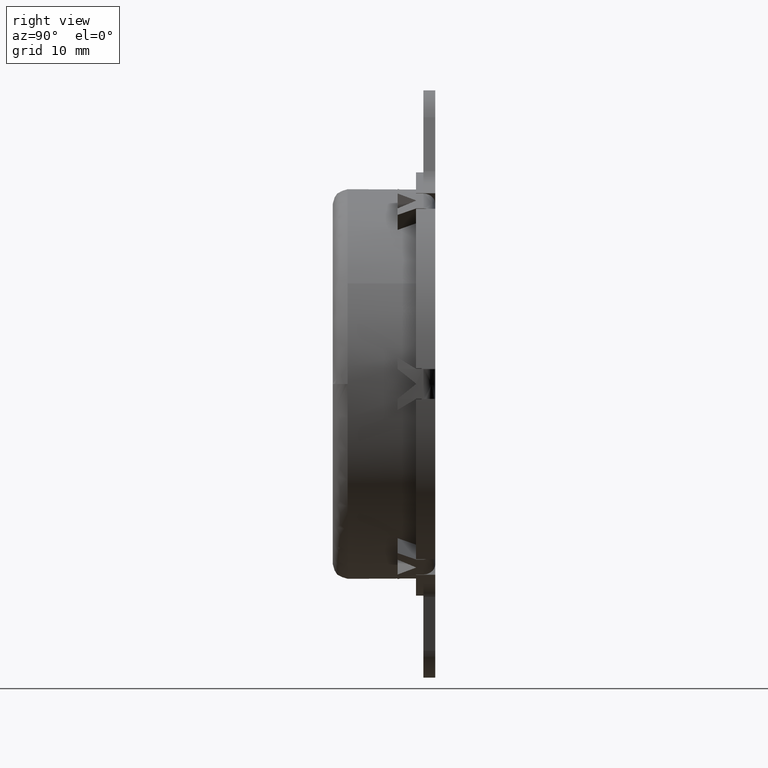
[diagram: clean part render]
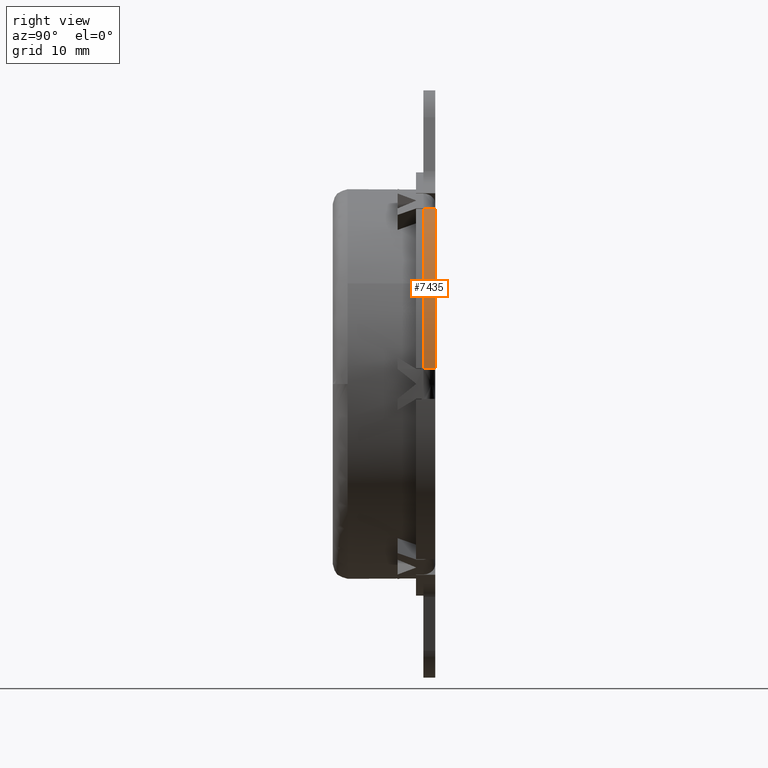
[diagram: same view with one face highlighted and labeled with its STEP entity id]
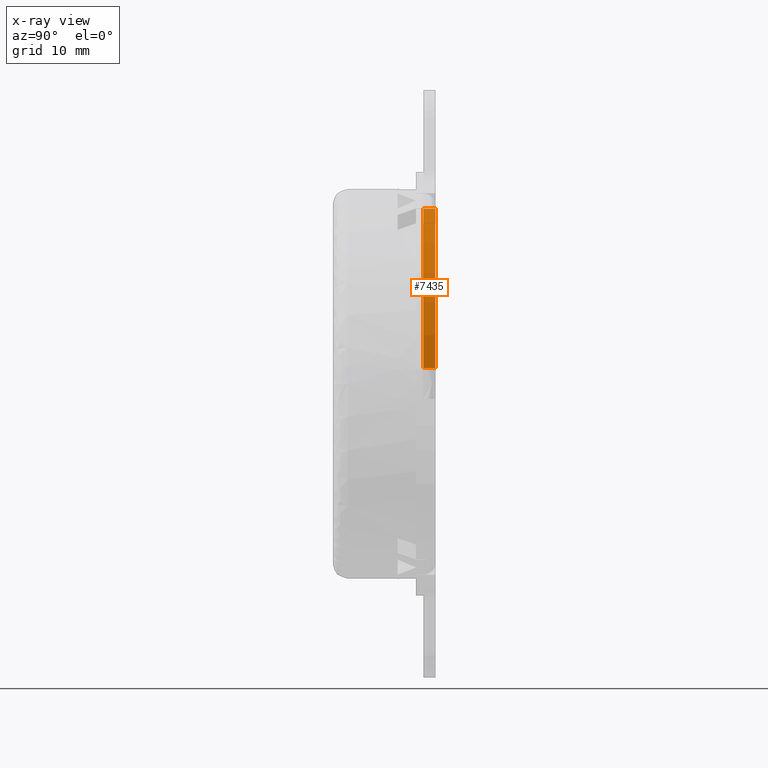
[diagram: x-ray of the same camera — body ghosted, the highlighted face saturated]
A machine part, right view. The second image highlights one B-rep face of the part: STEP entity #7435.
The next image is the same camera in x-ray: the body ghosted, the highlighted face saturated — about 0% of this face is hidden behind the body in this view.
In plain terms, the highlighted face is a freeform B-spline surface patch.
Its self-contained STEP definition (entity closure, byte-faithful):
#6673=CARTESIAN_POINT('',(16.029916486739548,0.0,23.564629796119348));
#6674=VERTEX_POINT('',#6673);
#6680=CARTESIAN_POINT('',(28.422526277584851,0.0,2.099999999999800));
#6681=VERTEX_POINT('',#6680);
#6682=CARTESIAN_POINT('',(28.422526277584840,0.0,2.099999999999783));
#6683=CARTESIAN_POINT('',(27.408505005214579,0.0,15.824307742845857));
#6684=CARTESIAN_POINT('',(16.029916486739548,0.0,23.564629796119348));
#6692=(BOUNDED_CURVE()B_SPLINE_CURVE(2,(#6682,#6683,#6684),.UNSPECIFIED.,.F.,.U.)CURVE()GEOMETRIC_REPRESENTATION_ITEM()QUASI_UNIFORM_CURVE()RATIONAL_B_SPLINE_CURVE((1.0,0.900513326179618,1.0))REPRESENTATION_ITEM(''));
#6693=EDGE_CURVE('',#6681,#6674,#6692,.T.);
#7359=CARTESIAN_POINT('',(16.029916486739548,-1.600010000000095,23.564629796119348));
#7360=VERTEX_POINT('',#7359);
#7366=CARTESIAN_POINT('',(16.029916486739548,-1.600010000000095,23.564629796119348));
#7367=CARTESIAN_POINT('',(16.029916486739548,0.0,23.564629796119348));
#7368=QUASI_UNIFORM_CURVE('',1,(#7366,#7367),.UNSPECIFIED.,.F.,.U.);
#7369=EDGE_CURVE('',#7360,#6674,#7368,.T.);
#7380=CARTESIAN_POINT('',(28.422526277584851,-1.600010000000095,2.099999999999790));
#7381=VERTEX_POINT('',#7380);
#7382=CARTESIAN_POINT('',(28.422526277584851,-1.600010000000095,2.099999999999790));
#7383=CARTESIAN_POINT('',(28.422526277584851,0.0,2.099999999999800));
#7384=QUASI_UNIFORM_CURVE('',1,(#7382,#7383),.UNSPECIFIED.,.F.,.U.);
#7385=EDGE_CURVE('',#7381,#6681,#7384,.T.);
#7403=CARTESIAN_POINT('',(28.439769759422258,-1.640010250000098,1.851889853919763));
#7404=CARTESIAN_POINT('',(28.439769759422258,0.041000256250002,1.851889853919763));
#7405=CARTESIAN_POINT('',(27.485213950420512,-1.640010250000098,16.511156641881197));
#7406=CARTESIAN_POINT('',(27.485213950420512,0.041000256250002,16.511156641881197));
#7407=CARTESIAN_POINT('',(14.991484328262926,-1.640010250000098,24.238510631543495));
#7408=CARTESIAN_POINT('',(14.991484328262926,0.041000256250002,24.238510631543495));
#7416=(BOUNDED_SURFACE()B_SPLINE_SURFACE(1,2,((#7403,#7405,#7407),(#7404,#7406,#7408)),.UNSPECIFIED.,.F.,.F.,.U.)B_SPLINE_SURFACE_WITH_KNOTS((2,2),(3,3),(0.0,1.0),(0.0,27.651980028960779),.UNSPECIFIED.)GEOMETRIC_REPRESENTATION_ITEM()RATIONAL_B_SPLINE_SURFACE(((1.0,0.887997178134883,0.998044530788465),(1.0,0.887997178134883,0.998044530788465)))REPRESENTATION_ITEM('')SURFACE());
#7417=CARTESIAN_POINT('',(28.422526277584840,-1.600010000000095,2.099999999999783));
#7418=CARTESIAN_POINT('',(27.408505005214579,-1.600010000000095,15.824307742845857));
#7419=CARTESIAN_POINT('',(16.029916486739548,-1.600010000000095,23.564629796119348));
#7427=(BOUNDED_CURVE()B_SPLINE_CURVE(2,(#7417,#7418,#7419),.UNSPECIFIED.,.F.,.U.)CURVE()GEOMETRIC_REPRESENTATION_ITEM()QUASI_UNIFORM_CURVE()RATIONAL_B_SPLINE_CURVE((1.0,0.900513326179618,1.0))REPRESENTATION_ITEM(''));
#7428=EDGE_CURVE('',#7381,#7360,#7427,.T.);
#7429=ORIENTED_EDGE('',*,*,#7428,.F.);
#7430=ORIENTED_EDGE('',*,*,#7385,.T.);
#7431=ORIENTED_EDGE('',*,*,#6693,.T.);
#7432=ORIENTED_EDGE('',*,*,#7369,.F.);
#7433=EDGE_LOOP('',(#7429,#7430,#7431,#7432));
#7434=FACE_OUTER_BOUND('',#7433,.T.);
#7435=ADVANCED_FACE('',(#7434),#7416,.T.);